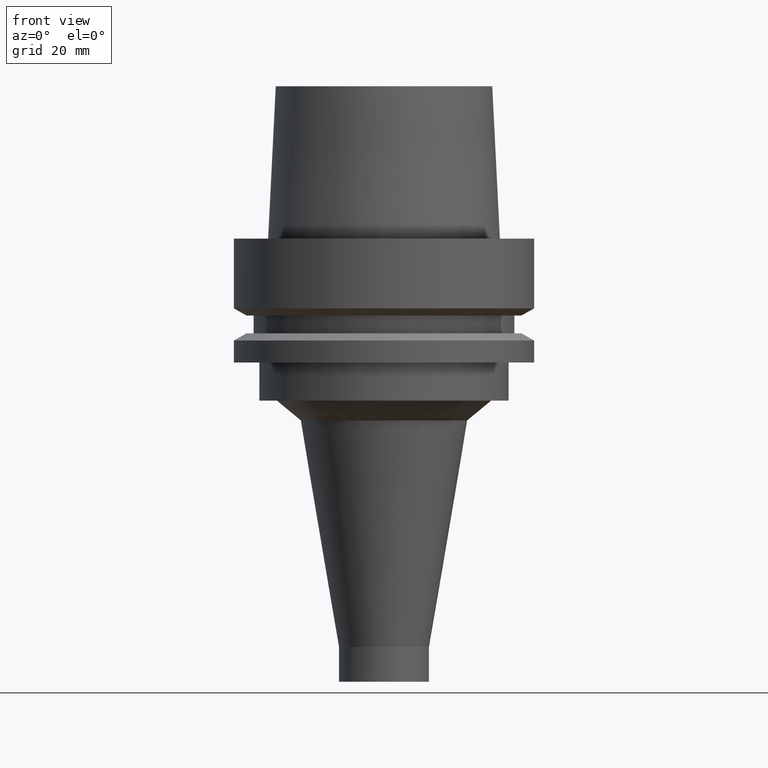
[diagram: clean part render]
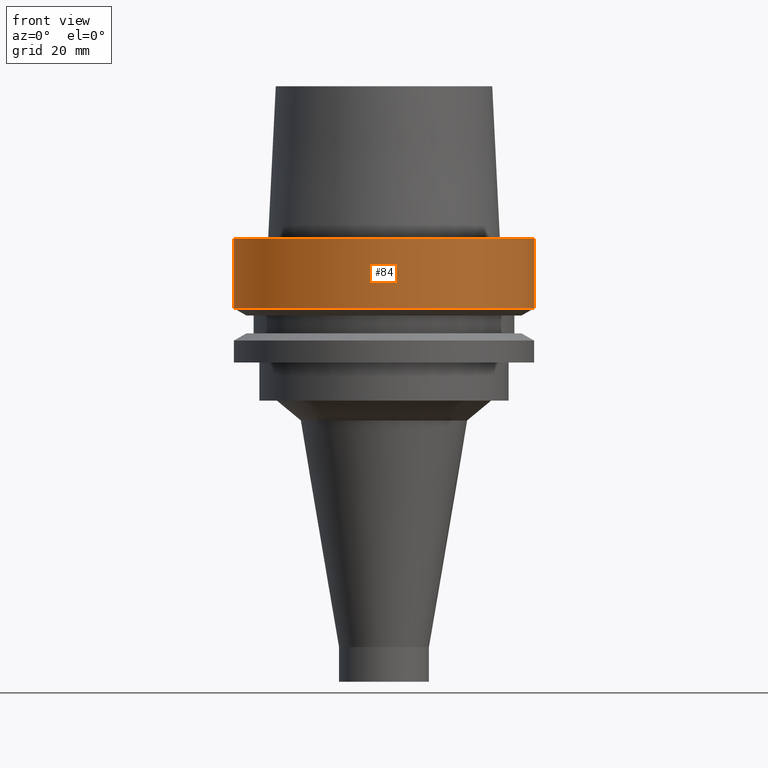
[diagram: same view with one face highlighted and labeled with its STEP entity id]
A machine part, front view. The second image highlights one B-rep face of the part: STEP entity #84.
In plain terms, the highlighted cylindrical surface (bore or boss wall) has radius 31.5 mm, axis along (-0, -0, 1).
Its self-contained STEP definition (entity closure, byte-faithful):
#84=ADVANCED_FACE('',(#119,#120),#121,.T.);
#119=FACE_BOUND('',#168,.T.);
#120=FACE_BOUND('',#169,.T.);
#121=CYLINDRICAL_SURFACE('',#170,31.5);
#168=EDGE_LOOP('',(#235));
#169=EDGE_LOOP('',(#236));
#170=AXIS2_PLACEMENT_3D('',#237,#238,#239);
#235=ORIENTED_EDGE('',*,*,#284,.F.);
#236=ORIENTED_EDGE('',*,*,#282,.T.);
#237=CARTESIAN_POINT('',(4.47684973986342E-016,8.95369947972684E-016,-7.311250465));
#238=DIRECTION('',(-6.12323399573677E-017,-1.22464679914735E-016,1.0));
#239=DIRECTION('',(-1.23259516440783E-032,1.0,1.22464679914735E-016));
#282=EDGE_CURVE('',#306,#306,#307,.T.);
#284=EDGE_CURVE('',#310,#310,#311,.T.);
#306=VERTEX_POINT('',#338);
#307=CIRCLE('',#339,31.5);
#310=VERTEX_POINT('',#342);
#311=CIRCLE('',#343,31.5);
#338=CARTESIAN_POINT('',(-3.8214424279273E-031,31.5,3.75763741731416E-015));
#339=AXIS2_PLACEMENT_3D('',#378,#379,#380);
#342=CARTESIAN_POINT('',(8.95369947972684E-016,31.5,-14.62250093));
#343=AXIS2_PLACEMENT_3D('',#384,#385,#386);
#378=CARTESIAN_POINT('',(0.0,0.0,0.0));
#379=DIRECTION('',(6.12323399573677E-017,1.22464679914735E-016,-1.0));
#380=DIRECTION('',(-1.23259516440783E-032,1.0,1.22464679914735E-016));
#384=CARTESIAN_POINT('',(8.95369947972685E-016,1.79073989594537E-015,-14.62250093));
#385=DIRECTION('',(6.12323399573677E-017,1.22464679914735E-016,-1.0));
#386=DIRECTION('',(-1.23259516440783E-032,1.0,1.22464679914735E-016));